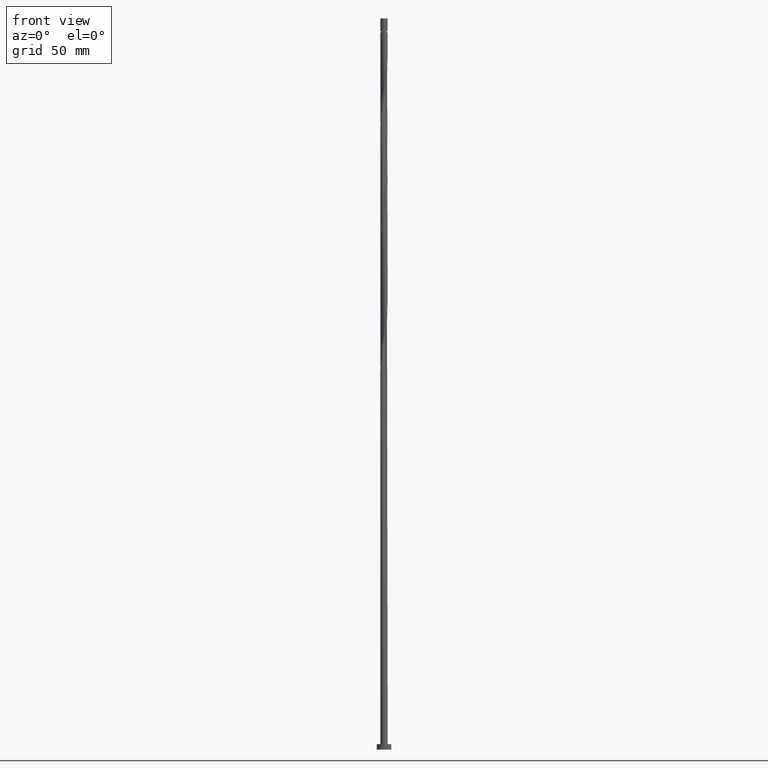
[diagram: clean part render]
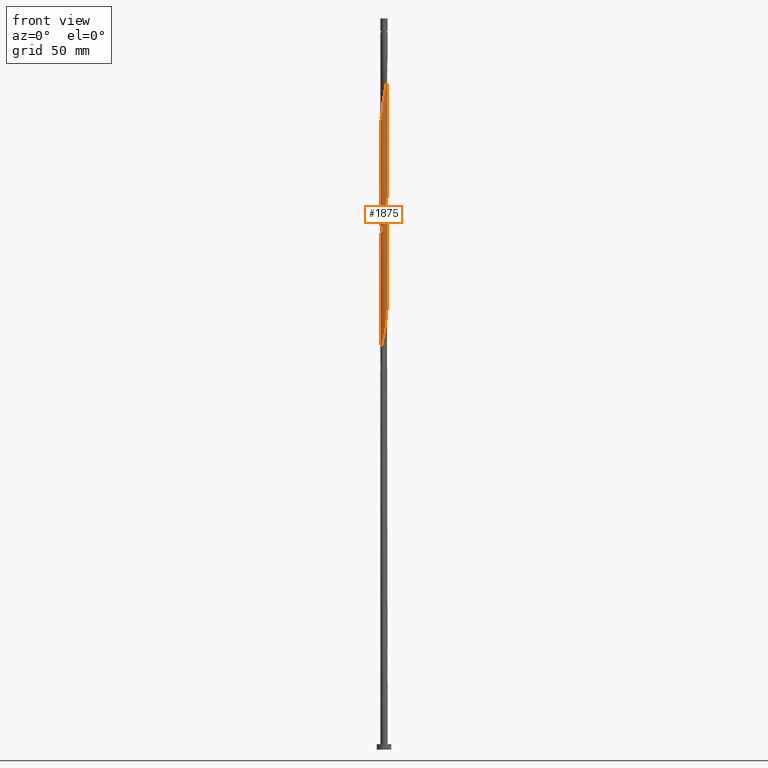
[diagram: same view with one face highlighted and labeled with its STEP entity id]
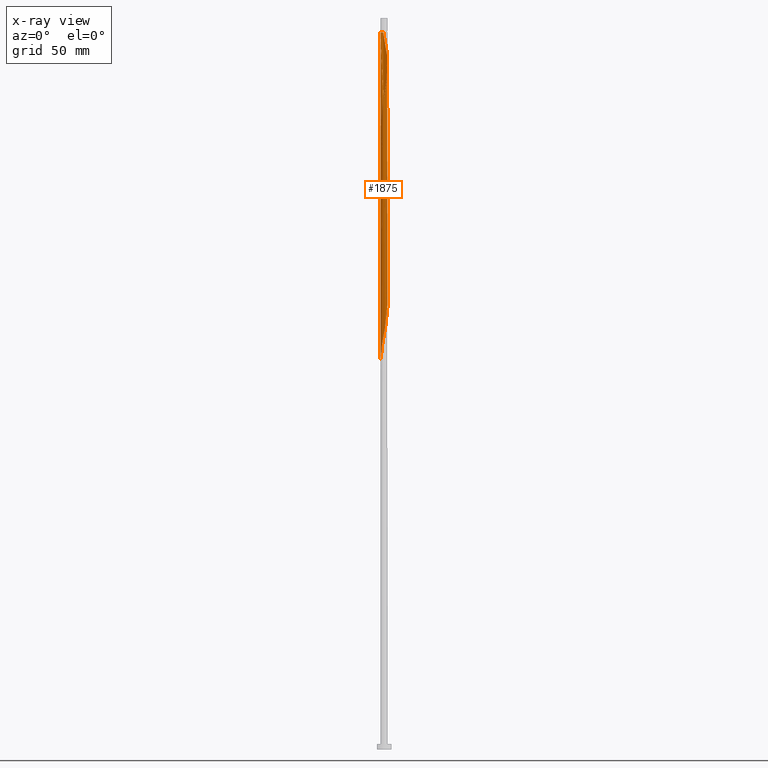
[diagram: x-ray of the same camera — body ghosted, the highlighted face saturated]
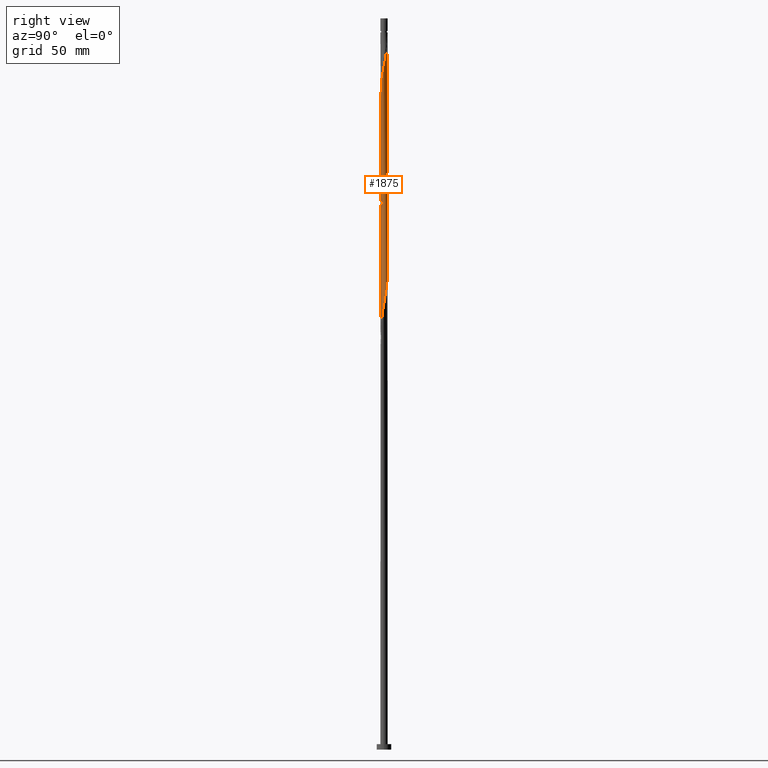
[diagram: same view with one face highlighted and labeled with its STEP entity id]
A machine part, front view. The second image highlights one B-rep face of the part: STEP entity #1875.
The next image is the same camera in x-ray: the body ghosted, the highlighted face saturated — about 0% of this face is hidden behind the body in this view.
A second angle (right view) of the same face is appended — the face is thin or edge-on in the first view.
In plain terms, the highlighted cylindrical surface (bore or boss wall) has radius 2 mm, axis along (-0, -0, -1).
Its self-contained STEP definition (entity closure, byte-faithful):
#4 = VERTEX_POINT ( 'NONE', #517 ) ;
#9 = CARTESIAN_POINT ( 'NONE',  ( 0.01820908425635875752, 1.999917105594769096, 390.1269850071076348 ) ) ;
#47 = CARTESIAN_POINT ( 'NONE',  ( -2.000000000000000000, 0.000000000000000000, 400.0000000000000000 ) ) ;
#57 = DIRECTION ( 'NONE',  ( -0.000000000000000000, -0.000000000000000000, -1.000000000000000000 ) ) ;
#64 = CARTESIAN_POINT ( 'NONE',  ( 1.990864718030365799, -0.1909389287229621979, 310.1269850071075780 ) ) ;
#74 = CARTESIAN_POINT ( 'NONE',  ( 2.010933208116240323, 0.01830938498303532821, 244.5714294515520919 ) ) ;
#76 = CARTESIAN_POINT ( 'NONE',  ( 1.741083561036291361, -0.9841890232517261916, 305.6825405626631778 ) ) ;
#82 = CARTESIAN_POINT ( 'NONE',  ( -2.000000000000000000, -6.502560707989063163E-16, 211.1413171395180939 ) ) ;
#83 = CARTESIAN_POINT ( 'NONE',  ( 0.4336173189964817043, -1.952428237008035028, 296.7936516737743204 ) ) ;
#91 = CARTESIAN_POINT ( 'NONE',  ( -2.000000000000003109, 3.139167238339523320E-16, 340.2237639858083185 ) ) ;
#92 = CARTESIAN_POINT ( 'NONE',  ( -1.160790321860653895, -1.628669956950958841, 287.9047627848854063 ) ) ;
#110 = CARTESIAN_POINT ( 'NONE',  ( -0.4336173189964841468, -1.952428237008037248, 354.5714294515520351 ) ) ;
#114 = CARTESIAN_POINT ( 'NONE',  ( -1.741083561036291361, 0.9841890232517259696, 339.0158738959965490 ) ) ;
#116 =( BOUNDED_CURVE ( )  B_SPLINE_CURVE ( 2, ( #91, #826, #1859, #568, #977, #665, #1097, #1688, #394, #948, #959, #1554, #1396, #252, #110, #707, #1893, #873, #1009, #577, #613, #1297, #323, #1596, #1772, #135, #476, #863, #173, #1288, #1454, #1138, #1174, #1605, #733, #291, #1430, #1039, #1030, #587, #1147, #437, #1167, #315, #1616, #881, #9, #737, #715 ),
 .UNSPECIFIED., .F., .T. ) 
 B_SPLINE_CURVE_WITH_KNOTS ( ( 3, 2, 2, 2, 2, 2, 2, 2, 2, 2, 2, 2, 2, 2, 2, 2, 2, 2, 2, 2, 2, 2, 2, 2, 3 ),
 ( 0.5545286012773111839, 0.5583333333333333481, 0.5666666666666666519, 0.5749999999999999556, 0.5833333333333332593, 0.5916666666666666741, 0.5999999999999999778, 0.6083333333333333925, 0.6166666666666666963, 0.6250000000000000000, 0.6333333333333333037, 0.6416666666666666075, 0.6500000000000000222, 0.6583333333333333259, 0.6666666666666667407, 0.6750000000000000444, 0.6833333333333333481, 0.6916666666666666519, 0.6999999999999999556, 0.7083333333333332593, 0.7166666666666666741, 0.7249999999999999778, 0.7333333333333333925, 0.7416666666666666963, 0.7500000000000000000 ),
 .UNSPECIFIED. ) 
 CURVE ( )  GEOMETRIC_REPRESENTATION_ITEM ( )  RATIONAL_B_SPLINE_CURVE ( ( 0.9066196499552759969, 0.9068171577856886101, 0.9090909090909877754, 0.9041108139712358271, 0.9090909090909877754, 0.9041108139712358271, 0.9090909090909877754, 0.9041108139712358271, 0.9090909090909877754, 0.9041108139712358271, 0.9090909090909877754, 0.9041108139712358271, 0.9090909090909877754, 0.9041108139712358271, 0.9090909090909877754, 0.9041108139712358271, 0.9090909090909877754, 0.9041108139712358271, 0.9090909090909877754, 0.9041108139712358271, 0.9090909090909877754, 0.9041108139712358271, 0.9090909090909877754, 0.9041108139712358271, 0.9090909090909877754, 0.9041108139712358271, 0.9090909090909877754, 0.9041108139712358271, 0.9090909090909877754, 0.9041108139712358271, 0.9090909090909877754, 0.9041108139712358271, 0.9090909090909877754, 0.9041108139712358271, 0.9090909090909877754, 0.9041108139712358271, 0.9090909090909877754, 0.9041108139712358271, 0.9090909090909877754, 0.9041108139712358271, 0.9090909090909877754, 0.9041108139712358271, 0.9090909090909877754, 0.9041108139712358271, 0.9090909090909877754, 0.9041108139712358271, 0.9090909090909877754, 0.9041108139712358271, 0.9090909090909877754 ) ) 
 REPRESENTATION_ITEM ( '' )  );
#128 = CARTESIAN_POINT ( 'NONE',  ( -1.907661111813263810, 0.6006905047321631219, 341.2380961182187775 ) ) ;
#131 = CARTESIAN_POINT ( 'NONE',  ( -1.990864718030366021, 0.1909389287229615317, 276.7936516737743204 ) ) ;
#135 = CARTESIAN_POINT ( 'NONE',  ( 1.616117153447398591, -1.196809486683749535, 366.7936516737743204 ) ) ;
#173 = CARTESIAN_POINT ( 'NONE',  ( 1.896407278838827537, -0.6353262412077171906, 370.1269850071077485 ) ) ;
#199 = CARTESIAN_POINT ( 'NONE',  ( 1.829631800112471618, 0.8346466780023316101, 315.6825405626631778 ) ) ;
#206 = CARTESIAN_POINT ( 'NONE',  ( -1.963182757565178571, -0.4360058044130974975, 280.1269850071075780 ) ) ;
#210 = CARTESIAN_POINT ( 'NONE',  ( 1.987057982840708892, 0.2271575946980669003, 312.3492072293298634 ) ) ;
#213 = CARTESIAN_POINT ( 'NONE',  ( -1.999999999999964473, 0.000000000000000000, 392.3492072293298634 ) ) ;
#216 = CARTESIAN_POINT ( 'NONE',  ( 1.359183481601801136, -1.482163238116483317, 235.6825405626631493 ) ) ;
#218 = CARTESIAN_POINT ( 'NONE',  ( 1.844525995682036568, -0.8011937670353668217, 306.7936516737742636 ) ) ;
#224 = CARTESIAN_POINT ( 'NONE',  ( 0.01820908425635674871, -1.999917105594765543, 227.9047627848853779 ) ) ;
#225 = CARTESIAN_POINT ( 'NONE',  ( -0.7968047437492595808, -1.834421489281750528, 290.1269850071076348 ) ) ;
#227 = ORIENTED_EDGE ( 'NONE', *, *, #1189, .T. ) ;
#233 = CARTESIAN_POINT ( 'NONE',  ( 1.907661111813263366, -0.6006905047321640101, 307.9047627848854063 ) ) ;
#239 = CARTESIAN_POINT ( 'NONE',  ( -1.999999999999999556, 0.09568799857350501759, 343.9661019472872567 ) ) ;
#245 = LINE ( 'NONE', #47, #1607 ) ;
#249 = CARTESIAN_POINT ( 'NONE',  ( -1.990864718030366021, 0.1909389287229615317, 343.4603183404409492 ) ) ;
#252 = CARTESIAN_POINT ( 'NONE',  ( -0.6388257957583274305, -1.906853220296959028, 353.4603183404410061 ) ) ;
#257 = ORIENTED_EDGE ( 'NONE', *, *, #1721, .F. ) ;
#261 = CARTESIAN_POINT ( 'NONE',  ( -1.844525995682036790, 0.8011937670353659335, 340.1269850071075211 ) ) ;
#280 = CARTESIAN_POINT ( 'NONE',  ( 1.474043792816781995, 1.351737732275871462, 252.3492072293298634 ) ) ;
#288 = CARTESIAN_POINT ( 'NONE',  ( 0.3979949748426518941, 1.959999999999999076, 325.6825405626632346 ) ) ;
#291 = CARTESIAN_POINT ( 'NONE',  ( 1.844525995682041009, 0.8011937670353652674, 377.9047627848854631 ) ) ;
#315 = CARTESIAN_POINT ( 'NONE',  ( 0.6388257957583274305, 1.906853220296958806, 386.7936516737742636 ) ) ;
#323 = CARTESIAN_POINT ( 'NONE',  ( 1.160790321860654783, -1.628669956950962838, 363.4603183404409492 ) ) ;
#331 = CARTESIAN_POINT ( 'NONE',  ( 1.160790321860654783, 1.628669956950957731, 321.2380961182187775 ) ) ;
#342 = CARTESIAN_POINT ( 'NONE',  ( -2.000000000000003109, 3.139167238339523320E-16, 340.2237639858083185 ) ) ;
#354 = CARTESIAN_POINT ( 'NONE',  ( -1.829631800112471618, -0.8346466780023317211, 282.3492072293298634 ) ) ;
#366 = CARTESIAN_POINT ( 'NONE',  ( -0.9896102115351408379, -1.750673936033921851, 222.3492072293298918 ) ) ;
#368 = CARTESIAN_POINT ( 'NONE',  ( 1.190253239091449755, -1.607263894583684349, 301.2380961182187207 ) ) ;
#377 = CARTESIAN_POINT ( 'NONE',  ( 2.000000000000000888, -0.09568799857349555293, 310.6327686139539992 ) ) ;
#386 = CARTESIAN_POINT ( 'NONE',  ( 1.722874476779934660, 1.015728082343038574, 250.1269850071076064 ) ) ;
#394 = CARTESIAN_POINT ( 'NONE',  ( -1.498412303996176309, -1.324673758792285883, 347.9047627848854063 ) ) ;
#397 = EDGE_CURVE ( 'NONE', #759, #1807, #1014, .T. ) ;
#400 = CARTESIAN_POINT ( 'NONE',  ( -1.637641126390545487, 1.167184279468086228, 337.9047627848854631 ) ) ;
#413 = CARTESIAN_POINT ( 'NONE',  ( -0.4336173189964824815, 1.952428237008035028, 263.4603183404410061 ) ) ;
#426 = CARTESIAN_POINT ( 'NONE',  ( -0.8300743961697122364, 1.819608885673920540, 265.6825405626631778 ) ) ;
#434 = CARTESIAN_POINT ( 'NONE',  ( 0.1919906737219256865, 2.001830957470418504, 326.7936516737742636 ) ) ;
#437 = CARTESIAN_POINT ( 'NONE',  ( 1.021322996581102593, 1.732364551050886492, 384.5714294515520351 ) ) ;
#440 = CARTESIAN_POINT ( 'NONE',  ( -1.741083561036291361, 0.9841890232517259696, 272.3492072293298634 ) ) ;
#476 = CARTESIAN_POINT ( 'NONE',  ( 1.722874476779936437, -1.015728082343041905, 367.9047627848854063 ) ) ;
#477 = VECTOR ( 'NONE', #1584, 1000.000000000000000 ) ;
#496 = CARTESIAN_POINT ( 'NONE',  ( 1.498412303996172978, -1.324673758792284772, 236.7936516737742920 ) ) ;
#500 = CARTESIAN_POINT ( 'NONE',  ( 0.7968047437492600249, 1.834421489281750528, 323.4603183404410061 ) ) ;
#505 = CARTESIAN_POINT ( 'NONE',  ( -0.6039992759633776576, -1.918169042529580093, 224.5714294515521203 ) ) ;
#512 = DIRECTION ( 'NONE',  ( -0.000000000000000000, -0.000000000000000000, -1.000000000000000000 ) ) ;
#514 = CARTESIAN_POINT ( 'NONE',  ( 1.637641126390544821, -1.167184279468087338, 237.9047627848854347 ) ) ;
#516 = CARTESIAN_POINT ( 'NONE',  ( -0.3979949748426517275, -1.959999999999999076, 292.3492072293300339 ) ) ;
#517 = CARTESIAN_POINT ( 'NONE',  ( -0.3979949748426918066, 1.960000000000516884, 392.3492072293298634 ) ) ;
#525 = CARTESIAN_POINT ( 'NONE',  ( -0.1919906737219265469, -2.001830957470418504, 226.7936516737742636 ) ) ;
#531 = FACE_OUTER_BOUND ( 'NONE', #1818, .T. ) ;
#533 = CARTESIAN_POINT ( 'NONE',  ( -0.01820908425635723096, 1.999917105594765987, 327.9047627848854631 ) ) ;
#536 = CARTESIAN_POINT ( 'NONE',  ( 1.987057982840708892, 0.2271575946980669003, 245.6825405626632630 ) ) ;
#543 = CARTESIAN_POINT ( 'NONE',  ( 0.3979949748426518941, 1.959999999999999076, 259.0158738959965490 ) ) ;
#545 = ORIENTED_EDGE ( 'NONE', *, *, #1671, .F. ) ;
#555 = CARTESIAN_POINT ( 'NONE',  ( -1.359183481601801136, 1.482163238116482651, 335.6825405626632346 ) ) ;
#566 = CARTESIAN_POINT ( 'NONE',  ( -0.8300743961697122364, 1.819608885673920540, 332.3492072293298065 ) ) ;
#568 = CARTESIAN_POINT ( 'NONE',  ( -1.970796227944494383, -0.4001872424289596442, 342.3492072293298634 ) ) ;
#569 = CARTESIAN_POINT ( 'NONE',  ( -0.01820908425635723096, 1.999917105594765987, 261.2380961182187207 ) ) ;
#577 = CARTESIAN_POINT ( 'NONE',  ( 0.6039992759633773245, -1.918169042529583868, 360.1269850071076348 ) ) ;
#578 = CARTESIAN_POINT ( 'NONE',  ( -1.970796227944491275, 0.4001872424289595886, 275.6825405626631209 ) ) ;
#587 = CARTESIAN_POINT ( 'NONE',  ( 1.359183481601804022, 1.482163238116484205, 382.3492072293298065 ) ) ;
#596 = CARTESIAN_POINT ( 'NONE',  ( 2.000000000000000000, 2.449293598294706414E-16, 392.3492072293298634 ) ) ;
#613 = CARTESIAN_POINT ( 'NONE',  ( 0.7968047437492594698, -1.834421489281754747, 361.2380961182187775 ) ) ;
#617 = CARTESIAN_POINT ( 'NONE',  ( 1.963182757565178571, 0.4360058044130967203, 313.4603183404409492 ) ) ;
#637 = DIRECTION ( 'NONE',  ( -1.000000000000000000, 0.000000000000000000, 0.000000000000000000 ) ) ;
#643 = CARTESIAN_POINT ( 'NONE',  ( 1.970796227944491275, -0.4001872424289598662, 242.3492072293298634 ) ) ;
#645 = VERTEX_POINT ( 'NONE', #1561 ) ;
#646 = EDGE_CURVE ( 'NONE', #1716, #4, #116, .T. ) ;
#665 = CARTESIAN_POINT ( 'NONE',  ( -1.844525995682040787, -0.8011937670353664886, 344.5714294515519782 ) ) ;
#667 = CARTESIAN_POINT ( 'NONE',  ( -1.331970432186166731, -1.506665977867996498, 286.7936516737743773 ) ) ;
#688 = CARTESIAN_POINT ( 'NONE',  ( -1.498412303996173200, 1.324673758792284328, 336.7936516737743204 ) ) ;
#698 = CARTESIAN_POINT ( 'NONE',  ( -1.021322996581099263, 1.732364551050885160, 333.4603183404410061 ) ) ;
#702 = CARTESIAN_POINT ( 'NONE',  ( -1.844525995682036790, 0.8011937670353659335, 273.4603183404410061 ) ) ;
#707 = CARTESIAN_POINT ( 'NONE',  ( -0.2284088422346411962, -1.998003253719115913, 355.6825405626630641 ) ) ;
#715 = CARTESIAN_POINT ( 'NONE',  ( -0.3979949748426918621, 1.960000000000516884, 392.3492072293298634 ) ) ;
#730 = ORIENTED_EDGE ( 'NONE', *, *, #1824, .T. ) ;
#733 = CARTESIAN_POINT ( 'NONE',  ( 1.907661111813268029, 0.6006905047321625668, 376.7936516737743204 ) ) ;
#737 = CARTESIAN_POINT ( 'NONE',  ( -0.1919906737219240211, 2.001830957470421612, 391.2380961182186638 ) ) ;
#759 = VERTEX_POINT ( 'NONE', #596 ) ;
#761 = DIRECTION ( 'NONE',  ( -0.000000000000000000, -0.000000000000000000, -1.000000000000000000 ) ) ;
#768 = CARTESIAN_POINT ( 'NONE',  ( 1.359183481601801136, -1.482163238116483317, 302.3492072293299771 ) ) ;
#771 = CARTESIAN_POINT ( 'NONE',  ( 2.000000000000000000, -1.793809850479741452E-16, 311.1413171395180370 ) ) ;
#779 = CARTESIAN_POINT ( 'NONE',  ( -1.829631800112471618, -0.8346466780023317211, 215.6825405626631778 ) ) ;
#784 = ORIENTED_EDGE ( 'NONE', *, *, #397, .F. ) ;
#790 = CARTESIAN_POINT ( 'NONE',  ( -1.160790321860653895, -1.628669956950958841, 221.2380961182187491 ) ) ;
#799 = CARTESIAN_POINT ( 'NONE',  ( 1.990864718030365799, -0.1909389287229621979, 243.4603183404409776 ) ) ;
#802 = CARTESIAN_POINT ( 'NONE',  ( 0.000000000000000000, 0.000000000000000000, 392.3492072293298634 ) ) ;
#809 = CARTESIAN_POINT ( 'NONE',  ( 1.498412303996172978, -1.324673758792284772, 303.4603183404410061 ) ) ;
#826 = CARTESIAN_POINT ( 'NONE',  ( -2.000000000000003553, -0.09568799857349374882, 340.7323125113721858 ) ) ;
#836 = CARTESIAN_POINT ( 'NONE',  ( -1.907661111813263810, 0.6006905047321631219, 274.5714294515520919 ) ) ;
#851 = ORIENTED_EDGE ( 'NONE', *, *, #646, .F. ) ;
#863 = CARTESIAN_POINT ( 'NONE',  ( 1.829631800112474505, -0.8346466780023340526, 369.0158738959965490 ) ) ;
#873 = CARTESIAN_POINT ( 'NONE',  ( 0.1919906737219251036, -2.001830957470421612, 357.9047627848853494 ) ) ;
#881 = CARTESIAN_POINT ( 'NONE',  ( 0.2284088422346415015, 1.998003253719116357, 389.0158738959964353 ) ) ;
#907 = CARTESIAN_POINT ( 'NONE',  ( 1.331970432186167175, 1.506665977867996276, 320.1269850071076917 ) ) ;
#913 = CARTESIAN_POINT ( 'NONE',  ( 0.6388257957583244329, -1.906853220296956808, 231.2380961182187775 ) ) ;
#915 = CARTESIAN_POINT ( 'NONE',  ( -1.896407278838824872, -0.6353262412077145260, 281.2380961182187207 ) ) ;
#922 = CARTESIAN_POINT ( 'NONE',  ( -1.331970432186166731, -1.506665977867996498, 220.1269850071076633 ) ) ;
#934 = CARTESIAN_POINT ( 'NONE',  ( 0.000000000000000000, 0.000000000000000000, 400.0000000000000000 ) ) ;
#939 = CARTESIAN_POINT ( 'NONE',  ( 1.844525995682036568, -0.8011937670353668217, 240.1269850071076064 ) ) ;
#948 = CARTESIAN_POINT ( 'NONE',  ( -1.359183481601803800, -1.482163238116484205, 349.0158738959964921 ) ) ;
#956 = EDGE_CURVE ( 'NONE', #1807, #645, #1731, .T. ) ;
#959 = CARTESIAN_POINT ( 'NONE',  ( -1.190253239091453308, -1.607263894583685682, 350.1269850071075780 ) ) ;
#961 = CARTESIAN_POINT ( 'NONE',  ( 1.160790321860654783, 1.628669956950957731, 254.5714294515520919 ) ) ;
#977 = CARTESIAN_POINT ( 'NONE',  ( -1.907661111813267807, -0.6006905047321631219, 343.4603183404410061 ) ) ;
#985 = CARTESIAN_POINT ( 'NONE',  ( 0.7968047437492600249, 1.834421489281750528, 256.7936516737742636 ) ) ;
#999 = CARTESIAN_POINT ( 'NONE',  ( 1.331970432186167175, 1.506665977867996276, 253.4603183404410345 ) ) ;
#1009 = CARTESIAN_POINT ( 'NONE',  ( 0.3979949748426515610, -1.960000000000002629, 359.0158738959967195 ) ) ;
#1014 = LINE ( 'NONE', #1443, #477 ) ;
#1030 = CARTESIAN_POINT ( 'NONE',  ( 1.498412303996176975, 1.324673758792285216, 381.2380961182187775 ) ) ;
#1039 = CARTESIAN_POINT ( 'NONE',  ( 1.637641126390548596, 1.167184279468087116, 380.1269850071075780 ) ) ;
#1048 = CARTESIAN_POINT ( 'NONE',  ( -2.000000000000000000, 0.000000000000000000, 400.0000000000000000 ) ) ;
#1061 = CARTESIAN_POINT ( 'NONE',  ( 1.021322996581098597, -1.732364551050885160, 233.4603183404410061 ) ) ;
#1062 = CARTESIAN_POINT ( 'NONE',  ( 0.01820908425635674871, -1.999917105594765543, 294.5714294515520351 ) ) ;
#1065 = CARTESIAN_POINT ( 'NONE',  ( 0.9896102115351410600, 1.750673936033921851, 322.3492072293297497 ) ) ;
#1070 = CARTESIAN_POINT ( 'NONE',  ( 1.829631800112471618, 0.8346466780023316101, 249.0158738959965206 ) ) ;
#1078 = CARTESIAN_POINT ( 'NONE',  ( -0.3979949748426517275, -1.959999999999999076, 225.6825405626631493 ) ) ;
#1079 = CARTESIAN_POINT ( 'NONE',  ( -0.6039992759633776576, -1.918169042529580093, 291.2380961182188344 ) ) ;
#1088 = CARTESIAN_POINT ( 'NONE',  ( -1.616117153447397259, -1.196809486683746426, 217.9047627848854347 ) ) ;
#1089 = CARTESIAN_POINT ( 'NONE',  ( 1.021322996581098597, -1.732364551050885160, 300.1269850071077485 ) ) ;
#1097 = CARTESIAN_POINT ( 'NONE',  ( -1.741083561036294469, -0.9841890232517273018, 345.6825405626631778 ) ) ;
#1119 = CARTESIAN_POINT ( 'NONE',  ( -1.190253239091450199, 1.607263894583683905, 334.5714294515520351 ) ) ;
#1129 = CARTESIAN_POINT ( 'NONE',  ( -0.6388257957583248769, 1.906853220296956586, 331.2380961182187207 ) ) ;
#1138 = CARTESIAN_POINT ( 'NONE',  ( 2.010933208116243431, -0.01830938498303819051, 373.4603183404408924 ) ) ;
#1139 = CARTESIAN_POINT ( 'NONE',  ( -1.359183481601801136, 1.482163238116482651, 269.0158738959964921 ) ) ;
#1147 = CARTESIAN_POINT ( 'NONE',  ( 1.190253239091453530, 1.607263894583685460, 383.4603183404408924 ) ) ;
#1167 = CARTESIAN_POINT ( 'NONE',  ( 0.8300743961697144568, 1.819608885673923870, 385.6825405626632914 ) ) ;
#1174 = CARTESIAN_POINT ( 'NONE',  ( 1.990864718030368907, 0.1909389287229597276, 374.5714294515520351 ) ) ;
#1182 = CARTESIAN_POINT ( 'NONE',  ( -2.000000000000000000, 6.353076553782416378E-16, 344.4746504728513514 ) ) ;
#1184 =( BOUNDED_CURVE ( )  B_SPLINE_CURVE ( 2, ( #1641, #239, #249, #1237, #128, #261, #114, #400, #688, #555, #1119, #698, #566, #1129, #1718, #1837, #533, #434, #288, #1801, #500, #1065, #331, #907, #1464, #1500, #1639, #199, #1326, #617, #210, #1653, #1196 ),
 .UNSPECIFIED., .F., .T. ) 
 B_SPLINE_CURVE_WITH_KNOTS ( ( 3, 2, 2, 2, 2, 2, 2, 2, 2, 2, 2, 2, 2, 2, 2, 2, 3 ),
 ( 0.4295286012773115725, 0.4333333333333333481, 0.4416666666666666519, 0.4500000000000000111, 0.4583333333333333148, 0.4666666666666666741, 0.4749999999999999778, 0.4833333333333333370, 0.4916666666666666408, 0.5000000000000000000, 0.5083333333333333037, 0.5166666666666667185, 0.5250000000000000222, 0.5333333333333333259, 0.5416666666666666297, 0.5500000000000000444, 0.5545286012773111839 ),
 .UNSPECIFIED. ) 
 CURVE ( )  GEOMETRIC_REPRESENTATION_ITEM ( )  RATIONAL_B_SPLINE_CURVE ( ( 0.9066196499552692245, 0.9068171577856820598, 0.9090909090909810031, 0.9041108139712289438, 0.9090909090909810031, 0.9041108139712289438, 0.9090909090909810031, 0.9041108139712289438, 0.9090909090909810031, 0.9041108139712289438, 0.9090909090909810031, 0.9041108139712289438, 0.9090909090909810031, 0.9041108139712289438, 0.9090909090909810031, 0.9041108139712289438, 0.9090909090909810031, 0.9041108139712289438, 0.9090909090909810031, 0.9041108139712289438, 0.9090909090909810031, 0.9041108139712289438, 0.9090909090909810031, 0.9041108139712289438, 0.9090909090909810031, 0.9041108139712289438, 0.9090909090909810031, 0.9041108139712289438, 0.9090909090909810031, 0.9041108139712289438, 0.9090909090909810031, 0.9063845652765281091, 0.9066196499552692245 ) ) 
 REPRESENTATION_ITEM ( '' )  );
#1189 = EDGE_CURVE ( 'NONE', #1716, #645, #245, .T. ) ;
#1196 = CARTESIAN_POINT ( 'NONE',  ( 2.000000000000000000, -1.793809850479741698E-16, 311.1413171395180370 ) ) ;
#1202 = CARTESIAN_POINT ( 'NONE',  ( 1.907661111813263366, -0.6006905047321640101, 241.2380961182187207 ) ) ;
#1213 = CARTESIAN_POINT ( 'NONE',  ( 1.190253239091449755, -1.607263894583684349, 234.5714294515520919 ) ) ;
#1216 = CARTESIAN_POINT ( 'NONE',  ( 1.970796227944491275, -0.4001872424289598662, 309.0158738959966058 ) ) ;
#1237 = CARTESIAN_POINT ( 'NONE',  ( -1.970796227944491275, 0.4001872424289595886, 342.3492072293299771 ) ) ;
#1240 = CARTESIAN_POINT ( 'NONE',  ( 0.2284088422346400582, -1.998003253719113026, 229.0158738959965774 ) ) ;
#1242 = CARTESIAN_POINT ( 'NONE',  ( -1.616117153447397259, -1.196809486683746426, 284.5714294515519782 ) ) ;
#1261 = CARTESIAN_POINT ( 'NONE',  ( -1.190253239091450199, 1.607263894583683905, 267.9047627848853494 ) ) ;
#1271 = VECTOR ( 'NONE', #512, 1000.000000000000000 ) ;
#1282 = CARTESIAN_POINT ( 'NONE',  ( -0.6388257957583248769, 1.906853220296956586, 264.5714294515521487 ) ) ;
#1288 = CARTESIAN_POINT ( 'NONE',  ( 1.963182757565181014, -0.4360058044131002730, 371.2380961182186070 ) ) ;
#1297 = CARTESIAN_POINT ( 'NONE',  ( 0.9896102115351417261, -1.750673936033924738, 362.3492072293299202 ) ) ;
#1326 = CARTESIAN_POINT ( 'NONE',  ( 1.896407278838825095, 0.6353262412077135268, 314.5714294515520351 ) ) ;
#1338 = CARTESIAN_POINT ( 'NONE',  ( 1.963182757565178571, 0.4360058044130967203, 246.7936516737742636 ) ) ;
#1349 = CARTESIAN_POINT ( 'NONE',  ( 1.616117153447397925, 1.196809486683745760, 251.2380961182187775 ) ) ;
#1359 = CARTESIAN_POINT ( 'NONE',  ( -1.896407278838824872, -0.6353262412077145260, 214.5714294515520919 ) ) ;
#1368 = CARTESIAN_POINT ( 'NONE',  ( -1.722874476779934216, -1.015728082343038574, 216.7936516737743204 ) ) ;
#1370 = CARTESIAN_POINT ( 'NONE',  ( 0.2284088422346400582, -1.998003253719113026, 295.6825405626632346 ) ) ;
#1378 = CARTESIAN_POINT ( 'NONE',  ( -0.1919906737219265469, -2.001830957470418504, 293.4603183404410061 ) ) ;
#1389 = CARTESIAN_POINT ( 'NONE',  ( -1.474043792816781773, -1.351737732275871462, 285.6825405626631778 ) ) ;
#1396 = CARTESIAN_POINT ( 'NONE',  ( -0.8300743961697143458, -1.819608885673923426, 352.3492072293298634 ) ) ;
#1398 = CARTESIAN_POINT ( 'NONE',  ( -1.637641126390545487, 1.167184279468086228, 271.2380961182187775 ) ) ;
#1404 = CARTESIAN_POINT ( 'NONE',  ( -1.987057982840708892, -0.2271575946980671501, 279.0158738959964921 ) ) ;
#1430 = CARTESIAN_POINT ( 'NONE',  ( 1.741083561036294691, 0.9841890232517268577, 379.0158738959963785 ) ) ;
#1443 = CARTESIAN_POINT ( 'NONE',  ( 2.000000000000000000, 2.449293598294706414E-16, 400.0000000000000000 ) ) ;
#1454 = CARTESIAN_POINT ( 'NONE',  ( 1.987057982840712889, -0.2271575946980683991, 372.3492072293300907 ) ) ;
#1464 = CARTESIAN_POINT ( 'NONE',  ( 1.474043792816781995, 1.351737732275871462, 319.0158738959964921 ) ) ;
#1495 = CARTESIAN_POINT ( 'NONE',  ( 1.637641126390544821, -1.167184279468087338, 304.5714294515521487 ) ) ;
#1500 = CARTESIAN_POINT ( 'NONE',  ( 1.616117153447397925, 1.196809486683745760, 317.9047627848855200 ) ) ;
#1507 = CARTESIAN_POINT ( 'NONE',  ( -1.474043792816781773, -1.351737732275871462, 219.0158738959964921 ) ) ;
#1509 = CARTESIAN_POINT ( 'NONE',  ( 0.6388257957583244329, -1.906853220296956808, 297.9047627848854063 ) ) ;
#1521 = CARTESIAN_POINT ( 'NONE',  ( 0.8300743961697119033, -1.819608885673920540, 299.0158738959965490 ) ) ;
#1532 = CARTESIAN_POINT ( 'NONE',  ( -1.963182757565178571, -0.4360058044130974975, 213.4603183404409776 ) ) ;
#1534 = CARTESIAN_POINT ( 'NONE',  ( 2.000000000000000000, -1.793809850479741698E-16, 311.1413171395180370 ) ) ;
#1539 = ORIENTED_EDGE ( 'NONE', *, *, #956, .F. ) ;
#1554 = CARTESIAN_POINT ( 'NONE',  ( -1.021322996581101261, -1.732364551050887158, 351.2380961182188912 ) ) ;
#1561 = CARTESIAN_POINT ( 'NONE',  ( -2.000000000000000000, -6.502560707989063163E-16, 211.1413171395180655 ) ) ;
#1575 = CARTESIAN_POINT ( 'NONE',  ( -2.010933208116240323, -0.01830938498303649742, 277.9047627848854631 ) ) ;
#1583 = CARTESIAN_POINT ( 'NONE',  ( 0.9896102115351410600, 1.750673936033921851, 255.6825405626632062 ) ) ;
#1584 = DIRECTION ( 'NONE',  ( -0.000000000000000000, -0.000000000000000000, -1.000000000000000000 ) ) ;
#1586 = VERTEX_POINT ( 'NONE', #213 ) ;
#1596 = CARTESIAN_POINT ( 'NONE',  ( 1.331970432186167841, -1.506665977868000050, 364.5714294515519782 ) ) ;
#1605 = CARTESIAN_POINT ( 'NONE',  ( 1.970796227944494383, 0.4001872424289594221, 375.6825405626630641 ) ) ;
#1607 = VECTOR ( 'NONE', #1793, 1000.000000000000000 ) ;
#1616 = CARTESIAN_POINT ( 'NONE',  ( 0.4336173189964852015, 1.952428237008037248, 387.9047627848853494 ) ) ;
#1639 = CARTESIAN_POINT ( 'NONE',  ( 1.722874476779934660, 1.015728082343038574, 316.7936516737743204 ) ) ;
#1641 = CARTESIAN_POINT ( 'NONE',  ( -2.000000000000000000, 6.353076553782416378E-16, 344.4746504728513514 ) ) ;
#1645 = CARTESIAN_POINT ( 'NONE',  ( 0.8300743961697119033, -1.819608885673920540, 232.3492072293298918 ) ) ;
#1653 = CARTESIAN_POINT ( 'NONE',  ( 1.999999999999999556, 0.1139474748928690079, 311.7469084489027296 ) ) ;
#1659 = CARTESIAN_POINT ( 'NONE',  ( -0.7968047437492595808, -1.834421489281750528, 223.4603183404409492 ) ) ;
#1665 = CYLINDRICAL_SURFACE ( 'NONE', #1835, 2.000000000000000000 ) ;
#1670 = CARTESIAN_POINT ( 'NONE',  ( -1.999999999999999556, -0.1139474748928697434, 211.7469084489027011 ) ) ;
#1671 = EDGE_CURVE ( 'NONE', #1586, #1748, #1812, .T. ) ;
#1688 = CARTESIAN_POINT ( 'NONE',  ( -1.637641126390548374, -1.167184279468087782, 346.7936516737743204 ) ) ;
#1711 = CARTESIAN_POINT ( 'NONE',  ( -1.021322996581099263, 1.732364551050885160, 266.7936516737743204 ) ) ;
#1716 = VERTEX_POINT ( 'NONE', #342 ) ;
#1718 = CARTESIAN_POINT ( 'NONE',  ( -0.4336173189964824815, 1.952428237008035028, 330.1269850071075780 ) ) ;
#1720 = CARTESIAN_POINT ( 'NONE',  ( 0.6039992759633787678, 1.918169042529580093, 257.9047627848854631 ) ) ;
#1721 = EDGE_CURVE ( 'NONE', #1748, #1807, #1184, .T. ) ;
#1731 =( BOUNDED_CURVE ( )  B_SPLINE_CURVE ( 2, ( #1534, #377, #64, #1216, #233, #218, #76, #1495, #809, #768, #368, #1089, #1521, #1509, #83, #1370, #1062, #1378, #516, #1079, #225, #1829, #92, #667, #1389, #1242, #1842, #354, #915, #206, #1404, #1575, #131, #578, #836, #702, #440, #1398, #1878, #1139, #1261, #1711, #426, #1282, #413, #1871, #569, #1852, #543, #1720, #985, #1583, #961, #999, #280, #1349, #386, #1070, #1840, #1338, #536, #74, #799, #643, #1202, #939, #1827, #514, #496, #216, #1213, #1061, #1645, #913, #1804, #1240, #224, #525, #1078, #505, #1659, #366, #790, #922, #1507, #1088, #1368, #779, #1359, #1532, #1814, #1670, #82 ),
 .UNSPECIFIED., .F., .T. ) 
 B_SPLINE_CURVE_WITH_KNOTS ( ( 3, 2, 2, 2, 2, 2, 2, 2, 2, 2, 2, 2, 2, 2, 2, 2, 2, 2, 2, 2, 2, 2, 2, 2, 2, 2, 2, 2, 2, 2, 2, 2, 2, 2, 2, 2, 2, 2, 2, 2, 2, 2, 2, 2, 2, 2, 3 ),
 ( 0.5545286012773111839, 0.5583333333333333481, 0.5666666666666666519, 0.5749999999999999556, 0.5833333333333333703, 0.5916666666666666741, 0.5999999999999999778, 0.6083333333333332815, 0.6166666666666666963, 0.6250000000000000000, 0.6333333333333333037, 0.6416666666666667185, 0.6500000000000000222, 0.6583333333333333259, 0.6666666666666666297, 0.6750000000000000444, 0.6833333333333333481, 0.6916666666666666519, 0.6999999999999999556, 0.7083333333333333703, 0.7166666666666666741, 0.7249999999999999778, 0.7333333333333332815, 0.7416666666666666963, 0.7500000000000000000, 0.7583333333333333037, 0.7666666666666667185, 0.7750000000000000222, 0.7833333333333333259, 0.7916666666666666297, 0.8000000000000000444, 0.8083333333333333481, 0.8166666666666666519, 0.8249999999999999556, 0.8333333333333333703, 0.8416666666666666741, 0.8499999999999999778, 0.8583333333333332815, 0.8666666666666666963, 0.8750000000000000000, 0.8833333333333333037, 0.8916666666666666075, 0.8999999999999999112, 0.9083333333333332149, 0.9166666666666665186, 0.9250000000000000444, 0.9295286012773111839 ),
 .UNSPECIFIED. ) 
 CURVE ( )  GEOMETRIC_REPRESENTATION_ITEM ( )  RATIONAL_B_SPLINE_CURVE ( ( 0.9066196499552692245, 0.9068171577856818377, 0.9090909090909810031, 0.9041108139712289438, 0.9090909090909810031, 0.9041108139712289438, 0.9090909090909810031, 0.9041108139712289438, 0.9090909090909810031, 0.9041108139712289438, 0.9090909090909810031, 0.9041108139712289438, 0.9090909090909810031, 0.9041108139712289438, 0.9090909090909810031, 0.9041108139712289438, 0.9090909090909810031, 0.9041108139712289438, 0.9090909090909810031, 0.9041108139712289438, 0.9090909090909810031, 0.9041108139712289438, 0.9090909090909810031, 0.9041108139712289438, 0.9090909090909810031, 0.9041108139712289438, 0.9090909090909810031, 0.9041108139712289438, 0.9090909090909810031, 0.9041108139712289438, 0.9090909090909810031, 0.9041108139712289438, 0.9090909090909810031, 0.9041108139712289438, 0.9090909090909810031, 0.9041108139712289438, 0.9090909090909810031, 0.9041108139712289438, 0.9090909090909810031, 0.9041108139712289438, 0.9090909090909810031, 0.9041108139712289438, 0.9090909090909810031, 0.9041108139712289438, 0.9090909090909810031, 0.9041108139712289438, 0.9090909090909810031, 0.9041108139712289438, 0.9090909090909810031, 0.9041108139712289438, 0.9090909090909810031, 0.9041108139712289438, 0.9090909090909810031, 0.9041108139712289438, 0.9090909090909810031, 0.9041108139712289438, 0.9090909090909810031, 0.9041108139712289438, 0.9090909090909810031, 0.9041108139712289438, 0.9090909090909810031, 0.9041108139712289438, 0.9090909090909810031, 0.9041108139712289438, 0.9090909090909810031, 0.9041108139712289438, 0.9090909090909810031, 0.9041108139712289438, 0.9090909090909810031, 0.9041108139712289438, 0.9090909090909810031, 0.9041108139712289438, 0.9090909090909810031, 0.9041108139712289438, 0.9090909090909810031, 0.9041108139712289438, 0.9090909090909810031, 0.9041108139712289438, 0.9090909090909810031, 0.9041108139712289438, 0.9090909090909810031, 0.9041108139712289438, 0.9090909090909810031, 0.9041108139712289438, 0.9090909090909810031, 0.9041108139712289438, 0.9090909090909810031, 0.9041108139712289438, 0.9090909090909810031, 0.9041108139712289438, 0.9090909090909810031, 0.9063845652765281091, 0.9066196499552692245 ) ) 
 REPRESENTATION_ITEM ( '' )  );
#1733 = AXIS2_PLACEMENT_3D ( 'NONE', #802, #761, #1788 ) ;
#1748 = VERTEX_POINT ( 'NONE', #1182 ) ;
#1772 = CARTESIAN_POINT ( 'NONE',  ( 1.474043792816783549, -1.351737732275874571, 365.6825405626631778 ) ) ;
#1788 = DIRECTION ( 'NONE',  ( -1.000000000000000000, 0.000000000000000000, 0.000000000000000000 ) ) ;
#1793 = DIRECTION ( 'NONE',  ( -0.000000000000000000, -0.000000000000000000, -1.000000000000000000 ) ) ;
#1801 = CARTESIAN_POINT ( 'NONE',  ( 0.6039992759633787678, 1.918169042529580093, 324.5714294515520919 ) ) ;
#1804 = CARTESIAN_POINT ( 'NONE',  ( 0.4336173189964817043, -1.952428237008035028, 230.1269850071076633 ) ) ;
#1807 = VERTEX_POINT ( 'NONE', #771 ) ;
#1812 = LINE ( 'NONE', #1048, #1271 ) ;
#1814 = CARTESIAN_POINT ( 'NONE',  ( -1.987057982840708892, -0.2271575946980671501, 212.3492072293298918 ) ) ;
#1818 = EDGE_LOOP ( 'NONE', ( #545, #730, #851, #227, #1539, #784, #1889, #257 ) ) ;
#1824 = EDGE_CURVE ( 'NONE', #1586, #4, #1867, .T. ) ;
#1827 = CARTESIAN_POINT ( 'NONE',  ( 1.741083561036291361, -0.9841890232517261916, 239.0158738959965206 ) ) ;
#1829 = CARTESIAN_POINT ( 'NONE',  ( -0.9896102115351408379, -1.750673936033921851, 289.0158738959965490 ) ) ;
#1835 = AXIS2_PLACEMENT_3D ( 'NONE', #934, #57, #637 ) ;
#1837 = CARTESIAN_POINT ( 'NONE',  ( -0.2284088422346403080, 1.998003253719112582, 329.0158738959965490 ) ) ;
#1840 = CARTESIAN_POINT ( 'NONE',  ( 1.896407278838825095, 0.6353262412077135268, 247.9047627848854347 ) ) ;
#1842 = CARTESIAN_POINT ( 'NONE',  ( -1.722874476779934216, -1.015728082343038574, 283.4603183404409492 ) ) ;
#1852 = CARTESIAN_POINT ( 'NONE',  ( 0.1919906737219256865, 2.001830957470418504, 260.1269850071075780 ) ) ;
#1859 = CARTESIAN_POINT ( 'NONE',  ( -1.990864718030368907, -0.1909389287229608101, 341.2380961182187775 ) ) ;
#1867 = CIRCLE ( 'NONE', #1733, 1.999999999999964473 ) ;
#1871 = CARTESIAN_POINT ( 'NONE',  ( -0.2284088422346403080, 1.998003253719112582, 262.3492072293298634 ) ) ;
#1875 = ADVANCED_FACE ( 'NONE', ( #531 ), #1665, .T. ) ;
#1878 = CARTESIAN_POINT ( 'NONE',  ( -1.498412303996173200, 1.324673758792284328, 270.1269850071075780 ) ) ;
#1889 = ORIENTED_EDGE ( 'NONE', *, *, #397, .T. ) ;
#1893 = CARTESIAN_POINT ( 'NONE',  ( -0.01820908425635849037, -1.999917105594769096, 356.7936516737742636 ) ) ;